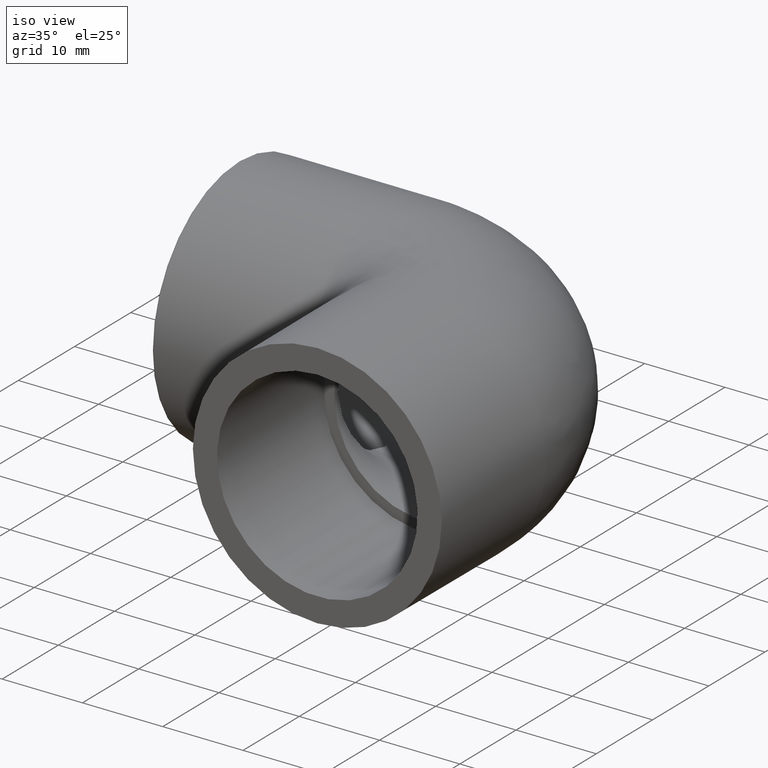
[diagram: clean part render]
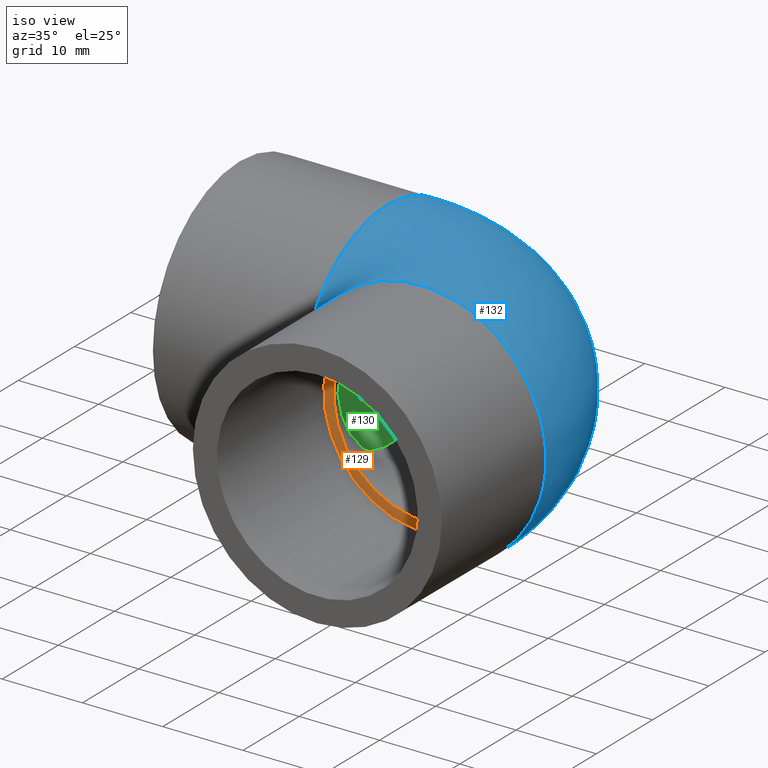
[diagram: same view with three faces highlighted in distinct colors, each labeled with its STEP entity id]
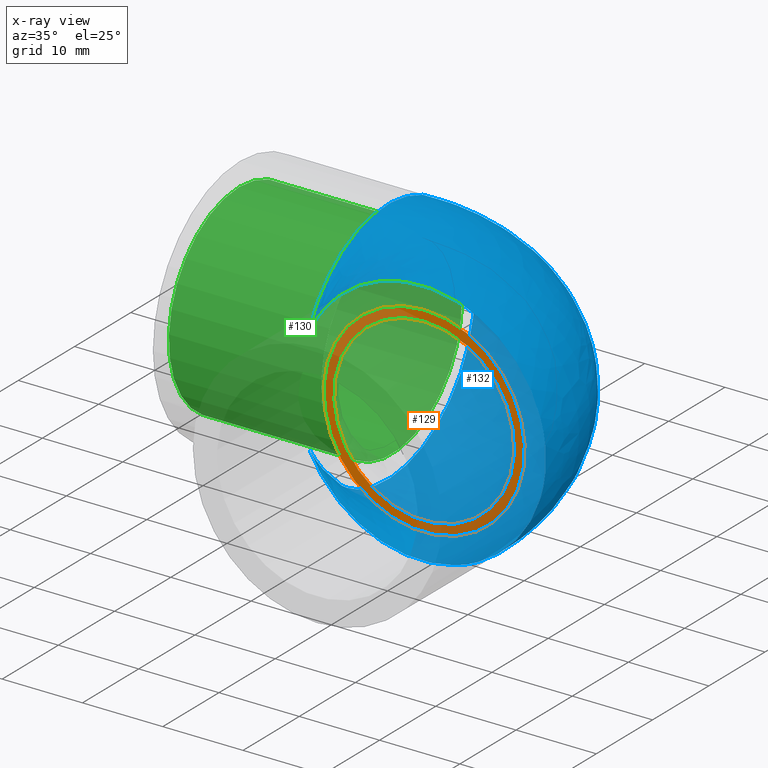
[diagram: x-ray of the same camera — body ghosted, the three highlighted faces saturated]
A machine part, iso view with three faces highlighted in distinct colors.
The next image is the same camera in x-ray (body ghosted, the three faces saturated) — at least one of them is partly hidden behind the body in this view.
Their STEP definitions:

[orange] entity #129 — the highlighted planar face has unit normal (0, 1, 0).
#17=PLANE('',#146);
#27=FACE_BOUND('',#51,.T.);
#37=FACE_OUTER_BOUND('',#50,.T.);
#50=EDGE_LOOP('',(#105));
#51=EDGE_LOOP('',(#106));
#67=CIRCLE('',#141,11.25);
#69=CIRCLE('',#144,12.5);
#78=VERTEX_POINT('',#210);
#80=VERTEX_POINT('',#215);
#89=EDGE_CURVE('',#78,#78,#67,.T.);
#91=EDGE_CURVE('',#80,#80,#69,.T.);
#105=ORIENTED_EDGE('',*,*,#91,.F.);
#106=ORIENTED_EDGE('',*,*,#89,.T.);
#129=ADVANCED_FACE('',(#37,#27),#17,.F.);
#141=AXIS2_PLACEMENT_3D('',#211,#166,#167);
#144=AXIS2_PLACEMENT_3D('',#216,#172,#173);
#146=AXIS2_PLACEMENT_3D('',#219,#176,#177);
#166=DIRECTION('center_axis',(6.12323399573677E-17,1.,0.));
#167=DIRECTION('ref_axis',(1.,-6.12323399573677E-17,0.));
#172=DIRECTION('center_axis',(6.12323399573677E-17,1.,0.));
#173=DIRECTION('ref_axis',(0.,0.,-1.));
#176=DIRECTION('center_axis',(6.12323399573677E-17,1.,0.));
#177=DIRECTION('ref_axis',(0.,0.,-1.));
#210=CARTESIAN_POINT('',(1.11022302462516E-15,-13.5,11.25));
#211=CARTESIAN_POINT('Origin',(0.,-13.5,0.));
#215=CARTESIAN_POINT('',(-2.35744508835865E-15,-13.5,12.5));
#216=CARTESIAN_POINT('Origin',(-8.26636589424463E-16,-13.5,0.));
#219=CARTESIAN_POINT('Origin',(-5.30577116191088E-16,-13.5,-7.19686321377933E-16));

[blue] entity #132 — the highlighted face is a freeform B-spline surface patch.
#16=(
BOUNDED_SURFACE()
B_SPLINE_SURFACE(2,2,((#226,#227,#228),(#229,#230,#231),(#232,#233,#234),
(#235,#236,#237),(#238,#239,#240),(#241,#242,#243),(#244,#245,#246),(#247,
#248,#249),(#250,#251,#252)),.UNSPECIFIED.,.F.,.F.,.F.)
B_SPLINE_SURFACE_WITH_KNOTS((3,2,2,2,3),(3,3),(-2.69802384047402,-1.34901192023701,
0.,1.34901192023701,2.69802384047402),(1.5707963267949,3.14159265358979),
 .UNSPECIFIED.)
GEOMETRIC_REPRESENTATION_ITEM()
RATIONAL_B_SPLINE_SURFACE(((1.,0.707106781186548,1.),(0.781015580040511,
0.55226141285899,0.781015580040511),(1.,0.707106781186548,1.),(0.781015580040509,
0.552261412858988,0.781015580040509),(1.,0.707106781186548,1.),(0.781015580040509,
0.552261412858988,0.781015580040509),(1.,0.707106781186548,1.),(0.781015580040511,
0.55226141285899,0.781015580040511),(1.,0.707106781186548,1.)))
REPRESENTATION_ITEM('')
SURFACE()
);
#40=FACE_OUTER_BOUND('',#56,.T.);
#56=EDGE_LOOP('',(#111,#112));
#73=CIRCLE('',#151,15.5);
#74=CIRCLE('',#152,15.5);
#84=VERTEX_POINT('',#253);
#85=VERTEX_POINT('',#254);
#95=EDGE_CURVE('',#84,#85,#73,.T.);
#96=EDGE_CURVE('',#85,#84,#74,.T.);
#111=ORIENTED_EDGE('',*,*,#95,.T.);
#112=ORIENTED_EDGE('',*,*,#96,.T.);
#132=ADVANCED_FACE('',(#40),#16,.F.);
#151=AXIS2_PLACEMENT_3D('',#255,#186,#187);
#152=AXIS2_PLACEMENT_3D('',#256,#188,#189);
#186=DIRECTION('center_axis',(1.,0.,0.));
#187=DIRECTION('ref_axis',(0.,0.,-1.));
#188=DIRECTION('center_axis',(6.12323399573677E-17,1.,0.));
#189=DIRECTION('ref_axis',(0.,0.,-1.));
#226=CARTESIAN_POINT('Ctrl Pts',(-14.,-14.,6.65206734782508));
#227=CARTESIAN_POINT('Ctrl Pts',(-14.,-14.,6.65206734782508));
#228=CARTESIAN_POINT('Ctrl Pts',(-14.,-14.,6.65206734782508));
#229=CARTESIAN_POINT('Ctrl Pts',(-14.,-8.68090915150703,17.8466731726216));
#230=CARTESIAN_POINT('Ctrl Pts',(-8.68090915150703,-8.68090915150703,17.8466731726216));
#231=CARTESIAN_POINT('Ctrl Pts',(-8.68090915150703,-14.,17.8466731726216));
#232=CARTESIAN_POINT('Ctrl Pts',(-14.,3.40954542424649,15.1203505250374));
#233=CARTESIAN_POINT('Ctrl Pts',(3.40954542424648,3.40954542424648,15.1203505250374));
#234=CARTESIAN_POINT('Ctrl Pts',(3.40954542424649,-14.,15.1203505250374));
#235=CARTESIAN_POINT('Ctrl Pts',(-14.,15.5,12.3940278774533));
#236=CARTESIAN_POINT('Ctrl Pts',(15.5,15.5,12.3940278774533));
#237=CARTESIAN_POINT('Ctrl Pts',(15.5,-14.,12.3940278774533));
#238=CARTESIAN_POINT('Ctrl Pts',(-14.,15.5,0.));
#239=CARTESIAN_POINT('Ctrl Pts',(15.5,15.5,0.));
#240=CARTESIAN_POINT('Ctrl Pts',(15.5,-14.,0.));
#241=CARTESIAN_POINT('Ctrl Pts',(-14.,15.5,-12.3940278774533));
#242=CARTESIAN_POINT('Ctrl Pts',(15.5,15.5,-12.3940278774533));
#243=CARTESIAN_POINT('Ctrl Pts',(15.5,-14.,-12.3940278774533));
#244=CARTESIAN_POINT('Ctrl Pts',(-14.,3.40954542424649,-15.1203505250374));
#245=CARTESIAN_POINT('Ctrl Pts',(3.40954542424648,3.40954542424648,-15.1203505250374));
#246=CARTESIAN_POINT('Ctrl Pts',(3.40954542424649,-14.,-15.1203505250374));
#247=CARTESIAN_POINT('Ctrl Pts',(-14.,-8.68090915150703,-17.8466731726216));
#248=CARTESIAN_POINT('Ctrl Pts',(-8.68090915150703,-8.68090915150703,-17.8466731726216));
#249=CARTESIAN_POINT('Ctrl Pts',(-8.68090915150703,-14.,-17.8466731726216));
#250=CARTESIAN_POINT('Ctrl Pts',(-14.,-14.,-6.65206734782508));
#251=CARTESIAN_POINT('Ctrl Pts',(-14.,-14.,-6.65206734782508));
#252=CARTESIAN_POINT('Ctrl Pts',(-14.,-14.,-6.65206734782508));
#253=CARTESIAN_POINT('',(-14.,-14.,-6.65206734782508));
#254=CARTESIAN_POINT('',(-14.,-14.,6.65206734782508));
#255=CARTESIAN_POINT('Origin',(-14.,0.,0.));
#256=CARTESIAN_POINT('Origin',(-8.57252759403146E-16,-14.,0.));

[green] entity #130 — the highlighted cylindrical surface (bore or boss wall) has radius 12.5 mm, axis along (1, 0, 0).
#22=CYLINDRICAL_SURFACE('',#147,12.5);
#28=FACE_BOUND('',#53,.T.);
#38=FACE_OUTER_BOUND('',#52,.T.);
#52=EDGE_LOOP('',(#107));
#53=EDGE_LOOP('',(#108));
#71=CIRCLE('',#148,12.5);
#72=CIRCLE('',#149,12.5);
#82=VERTEX_POINT('',#221);
#83=VERTEX_POINT('',#223);
#93=EDGE_CURVE('',#82,#82,#71,.T.);
#94=EDGE_CURVE('',#83,#83,#72,.T.);
#107=ORIENTED_EDGE('',*,*,#93,.T.);
#108=ORIENTED_EDGE('',*,*,#94,.F.);
#130=ADVANCED_FACE('',(#38,#28),#22,.F.);
#147=AXIS2_PLACEMENT_3D('',#220,#178,#179);
#148=AXIS2_PLACEMENT_3D('',#222,#180,#181);
#149=AXIS2_PLACEMENT_3D('',#224,#182,#183);
#178=DIRECTION('center_axis',(1.,0.,0.));
#179=DIRECTION('ref_axis',(0.,0.,-1.));
#180=DIRECTION('center_axis',(1.,0.,0.));
#181=DIRECTION('ref_axis',(0.,0.,-1.));
#182=DIRECTION('center_axis',(1.,0.,0.));
#183=DIRECTION('ref_axis',(0.,0.,-1.));
#220=CARTESIAN_POINT('Origin',(-32.5,0.,0.));
#221=CARTESIAN_POINT('',(-13.5,1.53080849893419E-15,12.5));
#222=CARTESIAN_POINT('Origin',(-13.5,0.,0.));
#223=CARTESIAN_POINT('',(-32.5,1.53080849893419E-15,12.5));
#224=CARTESIAN_POINT('Origin',(-32.5,0.,0.));